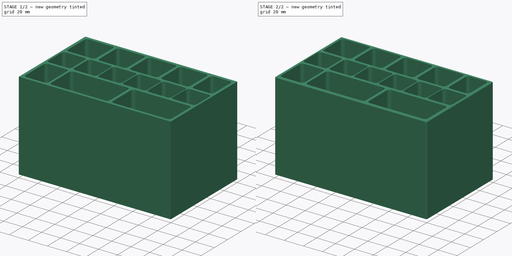
[diagram: build sequence overview — one tinted view per stage of 2, left to right]
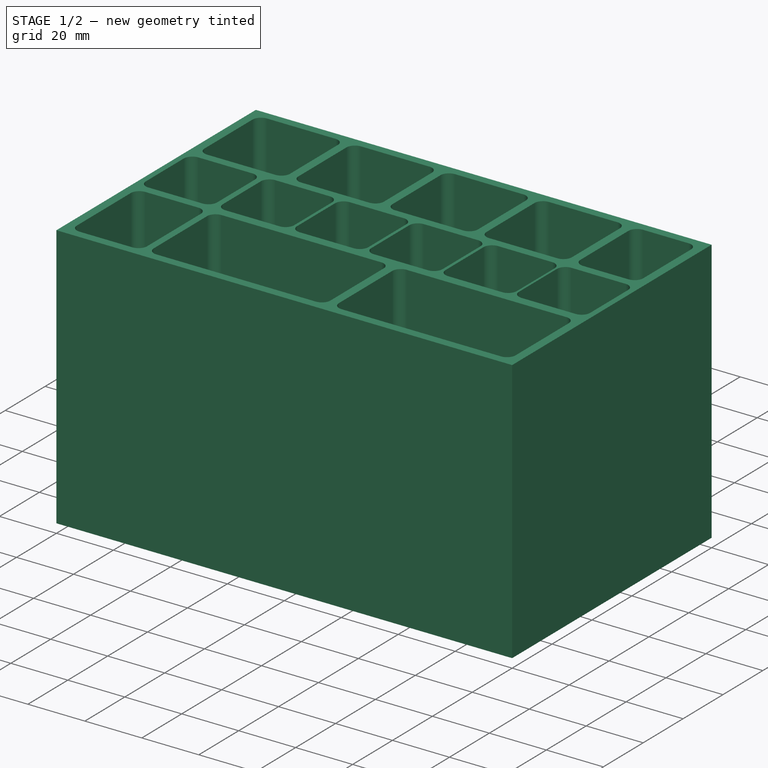
[diagram: stage 1 of 2 — iso view after this stage's code; geometry added in this stage tinted green]
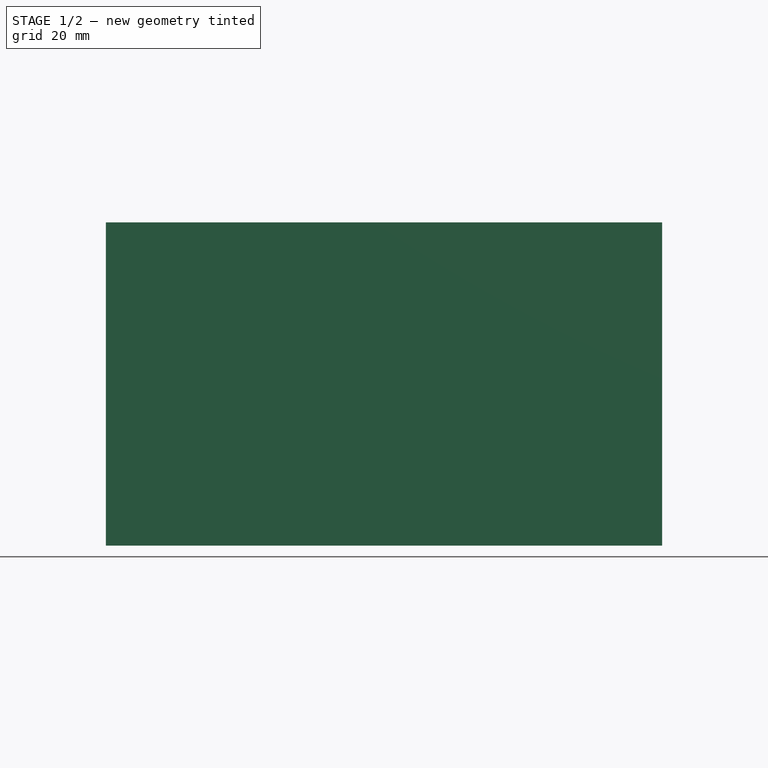
[diagram: stage 1 of 2 — front view after this stage's code; geometry added in this stage tinted green]
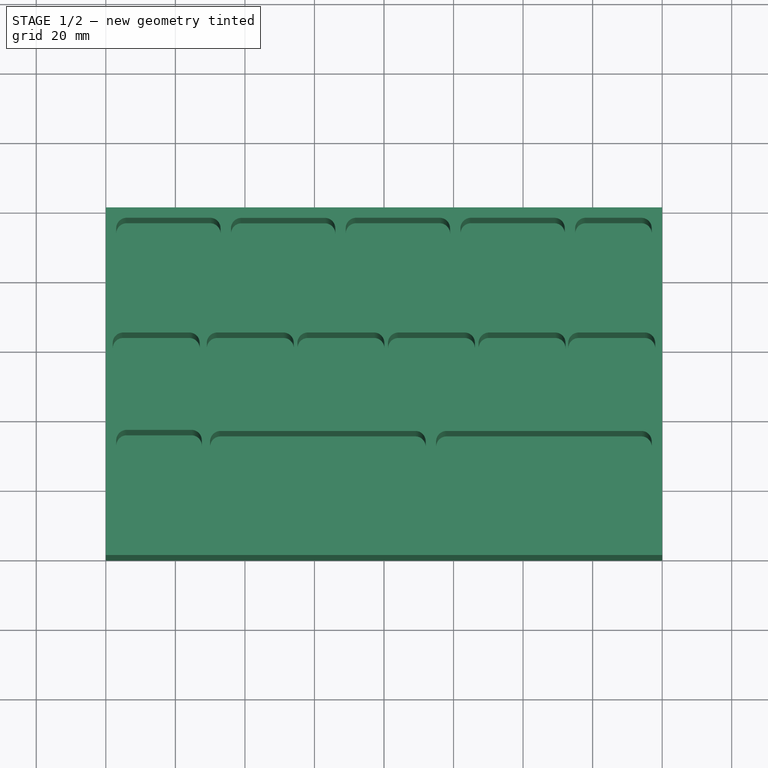
[diagram: stage 1 of 2 — top view after this stage's code; geometry added in this stage tinted green]
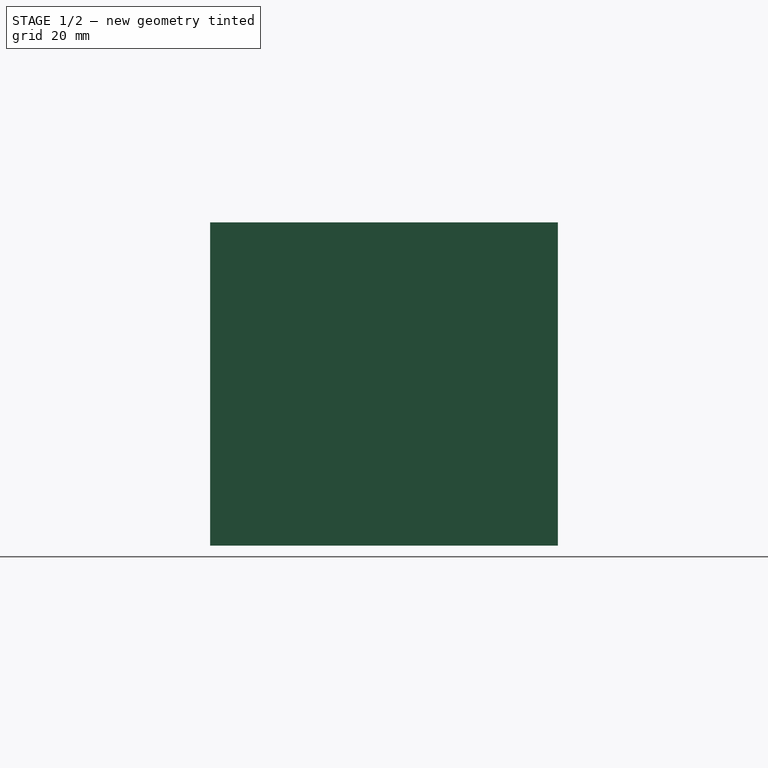
[diagram: stage 1 of 2 — right view after this stage's code; geometry added in this stage tinted green]
FCSTD DOCUMENT  (FreeCAD 1.2R20251230 (Git shallow))
Label: box_usb_lines
License: All rights reserved
LicenseURL: https://en.wikipedia.org/wiki/All_rights_reserved
objects: Sketcher::SketchObject×2, PartDesign::Pad×2, App::Point×1, PartDesign::Fillet×1, PartDesign::Body×1
note: 14 computed .brp shape members not serialized (recipe doc carries the construction recipe); baked Part::Feature solids carry a one-line shape summary decoded from their .brp

FEATURE [App::Point] Origin001
  Role = Origin
FEATURE [Sketcher::SketchObject] Sketch
  ArcFitTolerance = 1e-06
  AttachmentSupport = -> [Origin]
  ExternalTypes = [0]
  FullyConstrained = false
  MakeInternals = false
  MapMode = 5
  sketch-geometry (144):
    g0: LineSegment StartX=0 StartY=0 StartZ=0 EndX=0 EndY=100 EndZ=0
    g1: LineSegment StartX=0 StartY=100 StartZ=0 EndX=-160 EndY=100 EndZ=0
    g2: LineSegment StartX=-160 StartY=100 StartZ=0 EndX=-160 EndY=0 EndZ=0
    g3: LineSegment StartX=-160 StartY=0 StartZ=0 EndX=0 EndY=0 EndZ=0
    g4: LineSegment StartX=-157 StartY=94 StartZ=0 EndX=-157 EndY=70 EndZ=0
    g5: LineSegment StartX=-154 StartY=67 StartZ=0 EndX=-130 EndY=67 EndZ=0
    g6: LineSegment StartX=-127 StartY=70 StartZ=0 EndX=-127 EndY=94 EndZ=0
    g7: LineSegment StartX=-130 StartY=97 StartZ=0 EndX=-154 EndY=97 EndZ=0
    g8: ArcOfCircle CenterX=-154 CenterY=94 CenterZ=0 NormalX=0 NormalY=0 NormalZ=1 AngleXU=0 Radius=3 StartAngle=1.5708 EndAngle=3.14159
    g9: ArcOfCircle CenterX=-154 CenterY=70 CenterZ=0 NormalX=0 NormalY=0 NormalZ=1 AngleXU=0 Radius=3 StartAngle=3.14159 EndAngle=4.71239
    g10: ArcOfCircle CenterX=-130 CenterY=70 CenterZ=0 NormalX=0 NormalY=0 NormalZ=1 AngleXU=0 Radius=3 StartAngle=4.71239 EndAngle=6.28319
    g11: ArcOfCircle CenterX=-130 CenterY=94 CenterZ=0 NormalX=0 NormalY=0 NormalZ=1 AngleXU=0 Radius=3 StartAngle=1.4e-15 EndAngle=1.5708
    g12: GeomPoint [constr] X=-157 Y=97 Z=0
    g13: GeomPoint [constr] X=-127 Y=67 Z=0
    g14: LineSegment StartX=-124 StartY=93.9752 StartZ=0 EndX=-124 EndY=69.9752 EndZ=0
    g15: LineSegment StartX=-121 StartY=66.9752 StartZ=0 EndX=-97 EndY=66.9752 EndZ=0
    g16: LineSegment StartX=-94 StartY=69.9752 StartZ=0 EndX=-94 EndY=93.9752 EndZ=0
    g17: LineSegment StartX=-97 StartY=96.9752 StartZ=0 EndX=-121 EndY=96.9752 EndZ=0
    g18: ArcOfCircle CenterX=-121 CenterY=93.9752 CenterZ=0 NormalX=0 NormalY=0 NormalZ=1 AngleXU=0 Radius=3 StartAngle=1.5708 EndAngle=3.14159
    g19: ArcOfCircle CenterX=-121 CenterY=69.9752 CenterZ=0 NormalX=0 NormalY=0 NormalZ=1 AngleXU=0 Radius=3 StartAngle=3.14159 EndAngle=4.71239
    g20: ArcOfCircle CenterX=-97 CenterY=69.9752 CenterZ=0 NormalX=0 NormalY=0 NormalZ=1 AngleXU=0 Radius=3 StartAngle=4.71239 EndAngle=6.28319
    g21: ArcOfCircle CenterX=-97 CenterY=93.9752 CenterZ=0 NormalX=0 NormalY=0 NormalZ=1 AngleXU=0 Radius=3 StartAngle=-9e-16 EndAngle=1.5708
    g22: GeomPoint [constr] X=-124 Y=96.9752 Z=0
    g23: GeomPoint [constr] X=-94 Y=66.9752 Z=0
    g24: LineSegment StartX=-91 StartY=94 StartZ=0 EndX=-91 EndY=70 EndZ=0
    g25: LineSegment StartX=-88 StartY=67 StartZ=0 EndX=-64 EndY=67 EndZ=0
    g26: LineSegment StartX=-61 StartY=70 StartZ=0 EndX=-61 EndY=94 EndZ=0
    g27: LineSegment StartX=-64 StartY=97 StartZ=0 EndX=-88 EndY=97 EndZ=0
    g28: ArcOfCircle CenterX=-88 CenterY=94 CenterZ=0 NormalX=0 NormalY=0 NormalZ=1 AngleXU=0 Radius=3 StartAngle=1.5708 EndAngle=3.14159
    g29: ArcOfCircle CenterX=-88 CenterY=70 CenterZ=0 NormalX=0 NormalY=0 NormalZ=1 AngleXU=0 Radius=3 StartAngle=3.14159 EndAngle=4.71239
    g30: ArcOfCircle CenterX=-64 CenterY=70 CenterZ=0 NormalX=0 NormalY=0 NormalZ=1 AngleXU=0 Radius=3 StartAngle=4.71239 EndAngle=6.28319
    g31: ArcOfCircle CenterX=-64 CenterY=94 CenterZ=0 NormalX=0 NormalY=0 NormalZ=1 AngleXU=0 Radius=3 StartAngle=-1.8e-15 EndAngle=1.5708
    g32: GeomPoint [constr] X=-91 Y=97 Z=0
    g33: GeomPoint [constr] X=-61 Y=67 Z=0
    g34: LineSegment StartX=-58 StartY=94 StartZ=0 EndX=-58 EndY=70 EndZ=0
    g35: LineSegment StartX=-55 StartY=67 StartZ=0 EndX=-31 EndY=67 EndZ=0
    g36: LineSegment StartX=-28 StartY=70 StartZ=0 EndX=-28 EndY=94 EndZ=0
    g37: LineSegment StartX=-31 StartY=97 StartZ=0 EndX=-55 EndY=97 EndZ=0
    g38: ArcOfCircle CenterX=-55 CenterY=94 CenterZ=0 NormalX=0 NormalY=0 NormalZ=1 AngleXU=0 Radius=3 StartAngle=1.5708 EndAngle=3.14159
    g39: ArcOfCircle CenterX=-55 CenterY=70 CenterZ=0 NormalX=0 NormalY=0 NormalZ=1 AngleXU=0 Radius=3 StartAngle=3.14159 EndAngle=4.71239
    g40: ArcOfCircle CenterX=-31 CenterY=70 CenterZ=0 NormalX=0 NormalY=0 NormalZ=1 AngleXU=0 Radius=3 StartAngle=4.71239 EndAngle=6.28319
    g41: ArcOfCircle CenterX=-31 CenterY=94 CenterZ=0 NormalX=0 NormalY=0 NormalZ=1 AngleXU=0 Radius=3 StartAngle=1e-15 EndAngle=1.5708
    g42: GeomPoint [constr] X=-58 Y=97 Z=0
    g43: GeomPoint [constr] X=-28 Y=67 Z=0
    g44: LineSegment StartX=-25 StartY=94 StartZ=0 EndX=-25 EndY=70 EndZ=0
    g45: LineSegment StartX=-22 StartY=67 StartZ=0 EndX=-6 EndY=67 EndZ=0
    g46: LineSegment StartX=-3 StartY=70 StartZ=0 EndX=-3 EndY=94 EndZ=0
    g47: LineSegment StartX=-6 StartY=97 StartZ=0 EndX=-22 EndY=97 EndZ=0
    g48: ArcOfCircle CenterX=-22 CenterY=94 CenterZ=0 NormalX=0 NormalY=0 NormalZ=1 AngleXU=0 Radius=3 StartAngle=1.5708 EndAngle=3.14159
    g49: ArcOfCircle CenterX=-22 CenterY=70 CenterZ=0 NormalX=0 NormalY=0 NormalZ=1 AngleXU=0 Radius=3 StartAngle=3.14159 EndAngle=4.71239
    g50: ArcOfCircle CenterX=-6 CenterY=70 CenterZ=0 NormalX=0 NormalY=0 NormalZ=1 AngleXU=0 Radius=3 StartAngle=4.71239 EndAngle=6.28319
    g51: ArcOfCircle CenterX=-6 CenterY=94 CenterZ=0 NormalX=0 NormalY=0 NormalZ=1 AngleXU=0 Radius=3 StartAngle=-9e-16 EndAngle=1.5708
    g52: GeomPoint [constr] X=-25 Y=97 Z=0
    g53: GeomPoint [constr] X=-3 Y=67 Z=0
    g54: LineSegment StartX=-133 StartY=42 StartZ=0 EndX=-133 EndY=61 EndZ=0
    g55: LineSegment StartX=-136 StartY=64 StartZ=0 EndX=-155 EndY=64 EndZ=0
    g56: LineSegment StartX=-158 StartY=61 StartZ=0 EndX=-158 EndY=42 EndZ=0
    g57: LineSegment StartX=-155 StartY=39 StartZ=0 EndX=-136 EndY=39 EndZ=0
    g58: ArcOfCircle CenterX=-136 CenterY=42 CenterZ=0 NormalX=0 NormalY=0 NormalZ=1 AngleXU=0 Radius=3 StartAngle=4.71239 EndAngle=6.28319
    g59: ArcOfCircle CenterX=-136 CenterY=61 CenterZ=0 NormalX=0 NormalY=0 NormalZ=1 AngleXU=0 Radius=3 StartAngle=-9e-16 EndAngle=1.5708
    g60: ArcOfCircle CenterX=-155 CenterY=61 CenterZ=0 NormalX=0 NormalY=0 NormalZ=1 AngleXU=0 Radius=3 StartAngle=1.5708 EndAngle=3.14159
    g61: ArcOfCircle CenterX=-155 CenterY=42 CenterZ=0 NormalX=0 NormalY=0 NormalZ=1 AngleXU=0 Radius=3 StartAngle=3.14159 EndAngle=4.71239
    g62: GeomPoint [constr] X=-133 Y=39 Z=0
    g63: GeomPoint [constr] X=-158 Y=64 Z=0
    g64: LineSegment StartX=-105.946 StartY=42 StartZ=0 EndX=-105.946 EndY=61 EndZ=0
    g65: LineSegment StartX=-108.946 StartY=64 StartZ=0 EndX=-127.946 EndY=64 EndZ=0
    g66: LineSegment StartX=-130.946 StartY=61 StartZ=0 EndX=-130.946 EndY=42 EndZ=0
    g67: LineSegment StartX=-127.946 StartY=39 StartZ=0 EndX=-108.946 EndY=39 EndZ=0
    g68: ArcOfCircle CenterX=-108.946 CenterY=42 CenterZ=0 NormalX=0 NormalY=0 NormalZ=1 AngleXU=0 Radius=3 StartAngle=4.71239 EndAngle=6.28319
    g69: ArcOfCircle CenterX=-108.946 CenterY=61 CenterZ=0 NormalX=0 NormalY=0 NormalZ=1 AngleXU=0 Radius=3 StartAngle=0 EndAngle=1.5708
    g70: ArcOfCircle CenterX=-127.946 CenterY=61 CenterZ=0 NormalX=0 NormalY=0 NormalZ=1 AngleXU=0 Radius=3 StartAngle=1.5708 EndAngle=3.14159
    g71: ArcOfCircle CenterX=-127.946 CenterY=42 CenterZ=0 NormalX=0 NormalY=0 NormalZ=1 AngleXU=0 Radius=3 StartAngle=3.14159 EndAngle=4.71239
    g72: GeomPoint [constr] X=-105.946 Y=39 Z=0
    g73: GeomPoint [constr] X=-130.946 Y=64 Z=0
    g74: LineSegment StartX=-79.8914 StartY=42 StartZ=0 EndX=-79.8914 EndY=61 EndZ=0
    g75: LineSegment StartX=-82.8914 StartY=64 StartZ=0 EndX=-101.891 EndY=64 EndZ=0
    g76: LineSegment StartX=-104.891 StartY=61 StartZ=0 EndX=-104.891 EndY=42 EndZ=0
    g77: LineSegment StartX=-101.891 StartY=39 StartZ=0 EndX=-82.8914 EndY=39 EndZ=0
    g78: ArcOfCircle CenterX=-82.8914 CenterY=42 CenterZ=0 NormalX=0 NormalY=0 NormalZ=1 AngleXU=0 Radius=3 StartAngle=4.71239 EndAngle=6.28319
    g79: ArcOfCircle CenterX=-82.8914 CenterY=61 CenterZ=0 NormalX=0 NormalY=0 NormalZ=1 AngleXU=0 Radius=3 StartAngle=0 EndAngle=1.5708
    g80: ArcOfCircle CenterX=-101.891 CenterY=61 CenterZ=0 NormalX=0 NormalY=0 NormalZ=1 AngleXU=0 Radius=3 StartAngle=1.5708 EndAngle=3.14159
    g81: ArcOfCircle CenterX=-101.891 CenterY=42 CenterZ=0 NormalX=0 NormalY=0 NormalZ=1 AngleXU=0 Radius=3 StartAngle=3.14159 EndAngle=4.71239
    g82: GeomPoint [constr] X=-79.8914 Y=39 Z=0
    g83: GeomPoint [constr] X=-104.891 Y=64 Z=0
    g84: LineSegment StartX=-53.8372 StartY=42 StartZ=0 EndX=-53.8372 EndY=61 EndZ=0
    g85: LineSegment StartX=-56.8372 StartY=64 StartZ=0 EndX=-75.8372 EndY=64 EndZ=0
    g86: LineSegment StartX=-78.8372 StartY=61 StartZ=0 EndX=-78.8372 EndY=42 EndZ=0
    g87: LineSegment StartX=-75.8372 StartY=39 StartZ=0 EndX=-56.8372 EndY=39 EndZ=0
    g88: ArcOfCircle CenterX=-56.8372 CenterY=42 CenterZ=0 NormalX=0 NormalY=0 NormalZ=1 AngleXU=0 Radius=3 StartAngle=4.71239 EndAngle=6.28319
    g89: ArcOfCircle CenterX=-56.8372 CenterY=61 CenterZ=0 NormalX=0 NormalY=0 NormalZ=1 AngleXU=0 Radius=3 StartAngle=0 EndAngle=1.5708
    g90: ArcOfCircle CenterX=-75.8372 CenterY=61 CenterZ=0 NormalX=0 NormalY=0 NormalZ=1 AngleXU=0 Radius=3 StartAngle=1.5708 EndAngle=3.14159
    g91: ArcOfCircle CenterX=-75.8372 CenterY=42 CenterZ=0 NormalX=0 NormalY=0 NormalZ=1 AngleXU=0 Radius=3 StartAngle=3.14159 EndAngle=4.71239
    g92: GeomPoint [constr] X=-53.8372 Y=39 Z=0
    g93: GeomPoint [constr] X=-78.8372 Y=64 Z=0
    g94: LineSegment StartX=-27.7829 StartY=42 StartZ=0 EndX=-27.7829 EndY=61 EndZ=0
    g95: LineSegment StartX=-30.7829 StartY=64 StartZ=0 EndX=-49.7829 EndY=64 EndZ=0
    g96: LineSegment StartX=-52.7829 StartY=61 StartZ=0 EndX=-52.7829 EndY=42 EndZ=0
    g97: LineSegment StartX=-49.7829 StartY=39 StartZ=0 EndX=-30.7829 EndY=39 EndZ=0
    g98: ArcOfCircle CenterX=-30.7829 CenterY=42 CenterZ=0 NormalX=0 NormalY=0 NormalZ=1 AngleXU=0 Radius=3 StartAngle=4.71239 EndAngle=6.28319
    g99: ArcOfCircle CenterX=-30.7829 CenterY=61 CenterZ=0 NormalX=0 NormalY=0 NormalZ=1 AngleXU=0 Radius=3 StartAngle=0 EndAngle=1.5708
    g100: ArcOfCircle CenterX=-49.7829 CenterY=61 CenterZ=0 NormalX=0 NormalY=0 NormalZ=1 AngleXU=0 Radius=3 StartAngle=1.5708 EndAngle=3.14159
    g101: ArcOfCircle CenterX=-49.7829 CenterY=42 CenterZ=0 NormalX=0 NormalY=0 NormalZ=1 AngleXU=0 Radius=3 StartAngle=3.14159 EndAngle=4.71239
    g102: GeomPoint [constr] X=-27.7829 Y=39 Z=0
    g103: GeomPoint [constr] X=-52.7829 Y=64 Z=0
    g104: LineSegment StartX=-2 StartY=42 StartZ=0 EndX=-2 EndY=61 EndZ=0
    g105: LineSegment StartX=-5 StartY=64 StartZ=0 EndX=-24 EndY=64 EndZ=0
    g106: LineSegment StartX=-27 StartY=61 StartZ=0 EndX=-27 EndY=42 EndZ=0
    g107: LineSegment StartX=-24 StartY=39 StartZ=0 EndX=-5 EndY=39 EndZ=0
    g108: ArcOfCircle CenterX=-5 CenterY=42 CenterZ=0 NormalX=0 NormalY=0 NormalZ=1 AngleXU=0 Radius=3 StartAngle=4.71239 EndAngle=6.28319
    g109: ArcOfCircle CenterX=-5 CenterY=61 CenterZ=0 NormalX=0 NormalY=0 NormalZ=1 AngleXU=0 Radius=3 StartAngle=2e-16 EndAngle=1.5708
    g110: ArcOfCircle CenterX=-24 CenterY=61 CenterZ=0 NormalX=0 NormalY=0 NormalZ=1 AngleXU=0 Radius=3 StartAngle=1.5708 EndAngle=3.14159
    g111: ArcOfCircle CenterX=-24 CenterY=42 CenterZ=0 NormalX=0 NormalY=0 NormalZ=1 AngleXU=0 Radius=3 StartAngle=3.14159 EndAngle=4.71239
    g112: GeomPoint [constr] X=-2 Y=39 Z=0
    g113: GeomPoint [constr] X=-27 Y=64 Z=0
    g114: LineSegment StartX=-157 StartY=33 StartZ=0 EndX=-157 EndY=6 EndZ=0
    g115: LineSegment StartX=-154 StartY=3 StartZ=0 EndX=-135.39 EndY=3 EndZ=0
    g116: LineSegment StartX=-132.39 StartY=6 StartZ=0 EndX=-132.39 EndY=33 EndZ=0
    g117: LineSegment StartX=-135.39 StartY=36 StartZ=0 EndX=-154 EndY=36 EndZ=0
    g118: ArcOfCircle CenterX=-154 CenterY=33 CenterZ=0 NormalX=0 NormalY=0 NormalZ=1 AngleXU=0 Radius=3 StartAngle=1.5708 EndAngle=3.14159
    g119: ArcOfCircle CenterX=-154 CenterY=6 CenterZ=0 NormalX=0 NormalY=0 NormalZ=1 AngleXU=0 Radius=3 StartAngle=3.14159 EndAngle=4.71239
    g120: ArcOfCircle CenterX=-135.39 CenterY=6 CenterZ=0 NormalX=0 NormalY=0 NormalZ=1 AngleXU=0 Radius=3 StartAngle=4.71239 EndAngle=6.28319
    g121: ArcOfCircle CenterX=-135.39 CenterY=33 CenterZ=0 NormalX=0 NormalY=0 NormalZ=1 AngleXU=0 Radius=3 StartAngle=5e-16 EndAngle=1.5708
    g122: GeomPoint [constr] X=-157 Y=36 Z=0
    g123: GeomPoint [constr] X=-132.39 Y=3 Z=0
    g124: LineSegment StartX=-130 StartY=32.6864 StartZ=0 EndX=-130 EndY=6.01384 EndZ=0
    g125: LineSegment StartX=-127 StartY=3.01384 StartZ=0 EndX=-71 EndY=3.01384 EndZ=0
    g126: LineSegment StartX=-68 StartY=6.01384 StartZ=0 EndX=-68 EndY=32.6864 EndZ=0
    g127: LineSegment StartX=-71 StartY=35.6864 StartZ=0 EndX=-127 EndY=35.6864 EndZ=0
    g128: ArcOfCircle CenterX=-127 CenterY=32.6864 CenterZ=0 NormalX=0 NormalY=0 NormalZ=1 AngleXU=0 Radius=3 StartAngle=1.5708 EndAngle=3.14159
    g129: ArcOfCircle CenterX=-127 CenterY=6.01384 CenterZ=0 NormalX=0 NormalY=0 NormalZ=1 AngleXU=0 Radius=3 StartAngle=3.14159 EndAngle=4.71239
    g130: ArcOfCircle CenterX=-71 CenterY=6.01384 CenterZ=0 NormalX=0 NormalY=0 NormalZ=1 AngleXU=0 Radius=3 StartAngle=4.71239 EndAngle=6.28319
    g131: ArcOfCircle CenterX=-71 CenterY=32.6864 CenterZ=0 NormalX=0 NormalY=0 NormalZ=1 AngleXU=0 Radius=3 StartAngle=-9e-16 EndAngle=1.5708
    g132: GeomPoint [constr] X=-130 Y=35.6864 Z=0
    g133: GeomPoint [constr] X=-68 Y=3.01384 Z=0
    g134: LineSegment StartX=-65 StartY=32.6864 StartZ=0 EndX=-65 EndY=6.01969 EndZ=0
    g135: LineSegment StartX=-62 StartY=3.01969 StartZ=0 EndX=-6 EndY=3.01969 EndZ=0
    g136: LineSegment StartX=-3 StartY=6.01969 StartZ=0 EndX=-3 EndY=32.6864 EndZ=0
    g137: LineSegment StartX=-6 StartY=35.6864 StartZ=0 EndX=-62 EndY=35.6864 EndZ=0
    g138: ArcOfCircle CenterX=-62 CenterY=32.6864 CenterZ=0 NormalX=0 NormalY=0 NormalZ=1 AngleXU=0 Radius=3 StartAngle=1.5708 EndAngle=3.14159
    g139: ArcOfCircle CenterX=-62 CenterY=6.01969 CenterZ=0 NormalX=0 NormalY=0 NormalZ=1 AngleXU=0 Radius=3 StartAngle=3.14159 EndAngle=4.71239
    g140: ArcOfCircle CenterX=-6 CenterY=6.01969 CenterZ=0 NormalX=0 NormalY=0 NormalZ=1 AngleXU=0 Radius=3 StartAngle=4.71239 EndAngle=6.28319
    g141: ArcOfCircle CenterX=-6 CenterY=32.6864 CenterZ=0 NormalX=0 NormalY=0 NormalZ=1 AngleXU=0 Radius=3 StartAngle=0 EndAngle=1.5708
    g142: GeomPoint [constr] X=-65 Y=35.6864 Z=0
    g143: GeomPoint [constr] X=-3 Y=3.01969 Z=0
  constraints (332):
    c: Coincident(g0,g1)
    c: Coincident(g1,g2)
    c: Coincident(g2,g3)
    c: Coincident(g3,g0)
    c: Vertical(g0)
    c: Vertical(g2)
    c: Horizontal(g1)
    c: Horizontal(g3)
    c: Coincident(g0,g-1)
    c: DistanceX(g1,g1) = 160
    c: DistanceY(g2,g2) = 100
    c: Tangent(g4,g8) = -1.5708
    c: Tangent(g4,g9) = -1.5708
    c: Tangent(g5,g9) = -1.5708
    c: Tangent(g5,g10) = -1.5708
    c: Tangent(g6,g10) = -1.5708
    c: Tangent(g6,g11) = -1.5708
    c: Tangent(g7,g11) = -1.5708
    c: Tangent(g7,g8) = -1.5708
    c: Vertical(g4)
    c: Vertical(g6)
    c: Horizontal(g5)
    c: Horizontal(g7)
    c: Equal(g8,g9)
    c: Equal(g9,g10)
    c: Equal(g10,g11)
    c: PointOnObject(g12,g4)
    c: PointOnObject(g12,g7)
    c: PointOnObject(g13,g5)
    c: PointOnObject(g13,g6)
    c: Radius(g8) = 3
    c: Distance(g6,g4) = 30
    c: Distance(g4,g2) = 3
    c: Distance(g1,g7) = 3
    c: Tangent(g14,g18) = -1.5708
    c: Tangent(g24,g28) = -1.5708
    c: Tangent(g34,g38) = -1.5708
    c: Tangent(g14,g19) = -1.5708
    c: Tangent(g24,g29) = -1.5708
    c: Tangent(g34,g39) = -1.5708
    c: Tangent(g15,g19) = -1.5708
    c: Tangent(g25,g29) = -1.5708
    c: Tangent(g35,g39) = -1.5708
    c: Tangent(g15,g20) = -1.5708
    c: Tangent(g25,g30) = -1.5708
    c: Tangent(g35,g40) = -1.5708
    c: Tangent(g16,g20) = -1.5708
    c: Tangent(g26,g30) = -1.5708
    c: Tangent(g36,g40) = -1.5708
    c: Tangent(g16,g21) = -1.5708
    c: Tangent(g26,g31) = -1.5708
    c: Tangent(g36,g41) = -1.5708
    c: Tangent(g17,g21) = -1.5708
    c: Tangent(g27,g31) = -1.5708
    c: Tangent(g37,g41) = -1.5708
    c: Tangent(g17,g18) = -1.5708
    c: Tangent(g27,g28) = -1.5708
    c: Tangent(g37,g38) = -1.5708
    c: Vertical(g14)
    c: Vertical(g24)
    c: Vertical(g34)
    c: Vertical(g16)
    c: Vertical(g26)
    c: Vertical(g36)
    c: Horizontal(g15)
    c: Horizontal(g25)
    c: Horizontal(g35)
    c: Horizontal(g17)
    c: Horizontal(g27)
    c: Horizontal(g37)
    c: Equal(g18,g19)
    c: Equal(g28,g29)
    c: Equal(g38,g39)
    c: Equal(g19,g20)
    c: Equal(g29,g30)
    c: Equal(g39,g40)
    c: Equal(g20,g21)
    c: Equal(g30,g31)
    c: Equal(g40,g41)
    c: PointOnObject(g22,g14)
    c: PointOnObject(g32,g24)
    c: PointOnObject(g42,g34)
    c: PointOnObject(g22,g17)
    c: PointOnObject(g32,g27)
    c: PointOnObject(g42,g37)
    c: PointOnObject(g23,g15)
    c: PointOnObject(g33,g25)
    c: PointOnObject(g43,g35)
    c: PointOnObject(g23,g16)
    c: PointOnObject(g33,g26)
    c: PointOnObject(g43,g36)
    c: Radius(g18) = 3
    c: Radius(g28) = 3
    c: Radius(g38) = 3
    c: Distance(g16,g14) = 30
    c: Distance(g26,g24) = 30
    c: Distance(g36,g34) = 30
    c: Distance(g6,g14) = 3
    c: Distance(g24,g16) = 3
    c: Distance(g34,g26) = 3
    c: Tangent(g44,g48) = -1.5708
    c: Tangent(g44,g49) = -1.5708
    c: Tangent(g45,g49) = -1.5708
    c: Tangent(g45,g50) = -1.5708
    c: Tangent(g46,g50) = -1.5708
    c: Tangent(g46,g51) = -1.5708
    c: Tangent(g47,g51) = -1.5708
    c: Tangent(g47,g48) = -1.5708
    c: Vertical(g44)
    c: Vertical(g46)
    c: Horizontal(g45)
    c: Horizontal(g47)
    c: Equal(g48,g49)
    c: Equal(g49,g50)
    c: Equal(g50,g51)
    c: PointOnObject(g52,g44)
    c: PointOnObject(g52,g47)
    c: PointOnObject(g53,g45)
    c: PointOnObject(g53,g46)
    c: Radius(g51) = 3
    c: Distance(g0,g46) = 3
    c: Distance(g44,g36) = 3
    c: Distance(g1,g47) = 3
    c: Distance(g45,g47) = 30
    c: Distance(g5,g7) = 30
    c: Distance(g15,g17) = 30
    c: Distance(g25,g27) = 30
    c: Distance(g1,g27) = 3
    c: Distance(g35,g37) = 30
    c: Distance(g1,g37) = 3
    c: Tangent(g54,g58) = -1.5708
    c: Tangent(g54,g59) = -1.5708
    c: Tangent(g55,g59) = -1.5708
    c: Tangent(g55,g60) = -1.5708
    c: Tangent(g56,g60) = -1.5708
    c: Tangent(g56,g61) = -1.5708
    c: Tangent(g57,g61) = -1.5708
    c: Tangent(g57,g58) = -1.5708
    c: Vertical(g54)
    c: Vertical(g56)
    c: Horizontal(g55)
    c: Horizontal(g57)
    c: Equal(g58,g59)
    c: Equal(g59,g60)
    c: Equal(g60,g61)
    c: PointOnObject(g62,g54)
    c: PointOnObject(g62,g57)
    c: PointOnObject(g63,g55)
    c: PointOnObject(g63,g56)
    c: Radius(g60) = 3
    c: Distance(g57,g55) = 25
    c: Distance(g54,g56) = 25
    c: Distance(g2,g56) = 2
    c: Distance(g5,g55) = 3
    c: Tangent(g64,g68) = -1.5708
    c: Tangent(g74,g78) = -1.5708
    c: Tangent(g84,g88) = -1.5708
    c: Tangent(g94,g98) = -1.5708
    c: Tangent(g104,g108) = -1.5708
    c: Tangent(g64,g69) = -1.5708
    c: Tangent(g74,g79) = -1.5708
    c: Tangent(g84,g89) = -1.5708
    c: Tangent(g94,g99) = -1.5708
    c: Tangent(g104,g109) = -1.5708
    c: Tangent(g65,g69) = -1.5708
    c: Tangent(g75,g79) = -1.5708
    c: Tangent(g85,g89) = -1.5708
    c: Tangent(g95,g99) = -1.5708
    c: Tangent(g105,g109) = -1.5708
    c: Tangent(g65,g70) = -1.5708
    c: Tangent(g75,g80) = -1.5708
    c: Tangent(g85,g90) = -1.5708
    c: Tangent(g95,g100) = -1.5708
    c: Tangent(g105,g110) = -1.5708
    c: Tangent(g66,g70) = -1.5708
    c: Tangent(g76,g80) = -1.5708
    c: Tangent(g86,g90) = -1.5708
    c: Tangent(g96,g100) = -1.5708
    c: Tangent(g106,g110) = -1.5708
    c: Tangent(g66,g71) = -1.5708
    c: Tangent(g76,g81) = -1.5708
    c: Tangent(g86,g91) = -1.5708
    c: Tangent(g96,g101) = -1.5708
    c: Tangent(g106,g111) = -1.5708
    c: Tangent(g67,g71) = -1.5708
    c: Tangent(g77,g81) = -1.5708
    c: Tangent(g87,g91) = -1.5708
    c: Tangent(g97,g101) = -1.5708
    c: Tangent(g107,g111) = -1.5708
    c: Tangent(g67,g68) = -1.5708
    c: Tangent(g77,g78) = -1.5708
    c: Tangent(g87,g88) = -1.5708
    c: Tangent(g97,g98) = -1.5708
    c: Tangent(g107,g108) = -1.5708
    c: Vertical(g64)
    c: Vertical(g74)
    c: Vertical(g84)
    c: Vertical(g94)
    c: Vertical(g104)
    c: Vertical(g66)
    c: Vertical(g76)
    c: Vertical(g86)
    c: Vertical(g96)
    c: Vertical(g106)
    c: Horizontal(g65)
    c: Horizontal(g75)
    c: Horizontal(g85)
    c: Horizontal(g95)
    c: Horizontal(g105)
    c: Horizontal(g67)
    c: Horizontal(g77)
    c: Horizontal(g87)
    c: Horizontal(g97)
    c: Horizontal(g107)
    c: Equal(g68,g69)
    c: Equal(g78,g79)
    c: Equal(g88,g89)
    c: Equal(g98,g99)
    c: Equal(g108,g109)
    c: Equal(g69,g70)
    c: Equal(g79,g80)
    c: Equal(g89,g90)
    c: Equal(g99,g100)
    c: Equal(g109,g110)
    c: Equal(g70,g71)
    c: Equal(g80,g81)
    c: Equal(g90,g91)
    c: Equal(g100,g101)
    c: Equal(g110,g111)
    c: PointOnObject(g72,g64)
    c: PointOnObject(g82,g74)
    c: PointOnObject(g92,g84)
    c: PointOnObject(g102,g94)
    c: PointOnObject(g112,g104)
    c: PointOnObject(g72,g67)
    c: PointOnObject(g82,g77)
    c: PointOnObject(g92,g87)
    c: PointOnObject(g102,g97)
    c: PointOnObject(g112,g107)
    c: PointOnObject(g73,g65)
    c: PointOnObject(g83,g75)
    c: PointOnObject(g93,g85)
    c: PointOnObject(g103,g95)
    c: PointOnObject(g113,g105)
    c: PointOnObject(g73,g66)
    c: PointOnObject(g83,g76)
    c: PointOnObject(g93,g86)
    c: PointOnObject(g103,g96)
    c: PointOnObject(g113,g106)
    c: Radius(g70) = 3
    c: Radius(g80) = 3
    c: Radius(g90) = 3
    c: Radius(g100) = 3
    c: Radius(g110) = 3
    c: Distance(g67,g65) = 25
    c: Distance(g77,g75) = 25
    c: Distance(g87,g85) = 25
    c: Distance(g97,g95) = 25
    c: Distance(g107,g105) = 25
    c: Distance(g64,g66) = 25
    c: Distance(g74,g76) = 25
    c: Distance(g84,g86) = 25
    c: Distance(g94,g96) = 25
    c: Distance(g104,g106) = 25
    c: Distance(g0,g104) = 2
    c: Tangent(g114,g118) = -1.5708
    c: Tangent(g114,g119) = -1.5708
    c: Tangent(g115,g119) = -1.5708
    c: Tangent(g115,g120) = -1.5708
    c: Tangent(g116,g120) = -1.5708
    c: Tangent(g116,g121) = -1.5708
    c: Tangent(g117,g121) = -1.5708
    c: Tangent(g117,g118) = -1.5708
    c: Vertical(g114)
    c: Vertical(g116)
    c: Horizontal(g115)
    c: Horizontal(g117)
    c: Equal(g118,g119)
    c: Equal(g119,g120)
    c: Equal(g120,g121)
    c: PointOnObject(g122,g114)
    c: PointOnObject(g122,g117)
    c: PointOnObject(g123,g115)
    c: PointOnObject(g123,g116)
    c: Radius(g120) = 3
    c: Distance(g2,g114) = 3
    c: Distance(g57,g117) = 3
    c: Distance(g3,g115) = 3
    c: Tangent(g124,g128) = -1.5708
    c: Tangent(g124,g129) = -1.5708
    c: Tangent(g125,g129) = -1.5708
    c: Tangent(g125,g130) = -1.5708
    c: Tangent(g126,g130) = -1.5708
    c: Tangent(g126,g131) = -1.5708
    c: Tangent(g127,g131) = -1.5708
    c: Tangent(g127,g128) = -1.5708
    c: Vertical(g124)
    c: Vertical(g126)
    c: Horizontal(g125)
    c: Horizontal(g127)
    c: Equal(g128,g129)
    c: Equal(g129,g130)
    c: Equal(g130,g131)
    c: PointOnObject(g132,g124)
    c: PointOnObject(g132,g127)
    c: PointOnObject(g133,g125)
    c: PointOnObject(g133,g126)
    c: Radius(g130) = 3
    c: Distance(g126,g124) = 62
    c: Tangent(g134,g138) = -1.5708
    c: Tangent(g134,g139) = -1.5708
    c: Tangent(g135,g139) = -1.5708
    c: Tangent(g135,g140) = -1.5708
    c: Tangent(g136,g140) = -1.5708
    c: Tangent(g136,g141) = -1.5708
    c: Tangent(g137,g141) = -1.5708
    c: Tangent(g137,g138) = -1.5708
    c: Vertical(g134)
    c: Vertical(g136)
    c: Horizontal(g135)
    c: Horizontal(g137)
    c: Equal(g138,g139)
    c: Equal(g139,g140)
    c: Equal(g140,g141)
    c: PointOnObject(g142,g134)
    c: PointOnObject(g142,g137)
    c: PointOnObject(g143,g135)
    c: PointOnObject(g143,g136)
    c: Radius(g140) = 3
    c: Distance(g136,g134) = 62
    c: Distance(g0,g136) = 3
    c: Distance(g134,g126) = 3
FEATURE [PartDesign::Pad] Pad
  Direction = (0,0,1)
  Length = 90
  Length2 = 10
  Profile = -> Sketch
  ReferenceAxis = -> Sketch [N_Axis]
  Refine = true
  SideType = 0
  Suppressed = false
  Type = 0
  Type2 = 0
FEATURE [Sketcher::SketchObject] Sketch001
  ArcFitTolerance = 1e-06
  AttachmentSupport = -> [Pad]
  ExternalGeometry = -> [Pad]
  ExternalTypes = [0,0,0,0]
  FullyConstrained = true
  MakeInternals = false
  MapMode = 5
  Placement = pos=(0,0,0) rot=(1,0,0;3.14159rad)
FEATURE [PartDesign::Pad] Pad001
  BaseFeature = -> Pad
  Direction = (0,0,-1)
  Length = 3
  Length2 = 10
  Profile = -> Sketch001
  ReferenceAxis = -> Sketch001 [N_Axis]
  Refine = true
  SideType = 0
  Suppressed = false
  Type = 0
  Type2 = 0
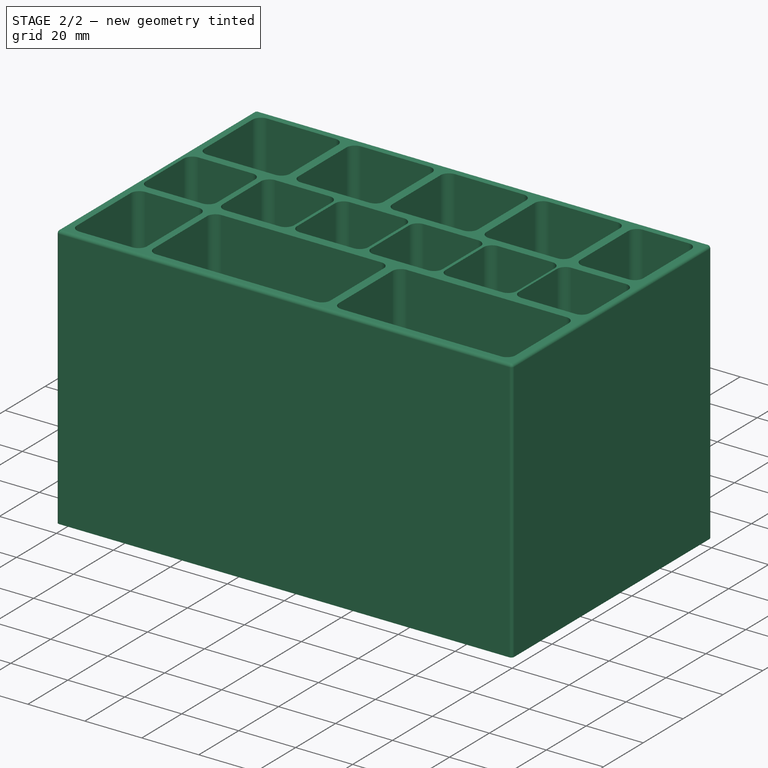
[diagram: stage 2 of 2 — iso view after this stage's code; geometry added in this stage tinted green]
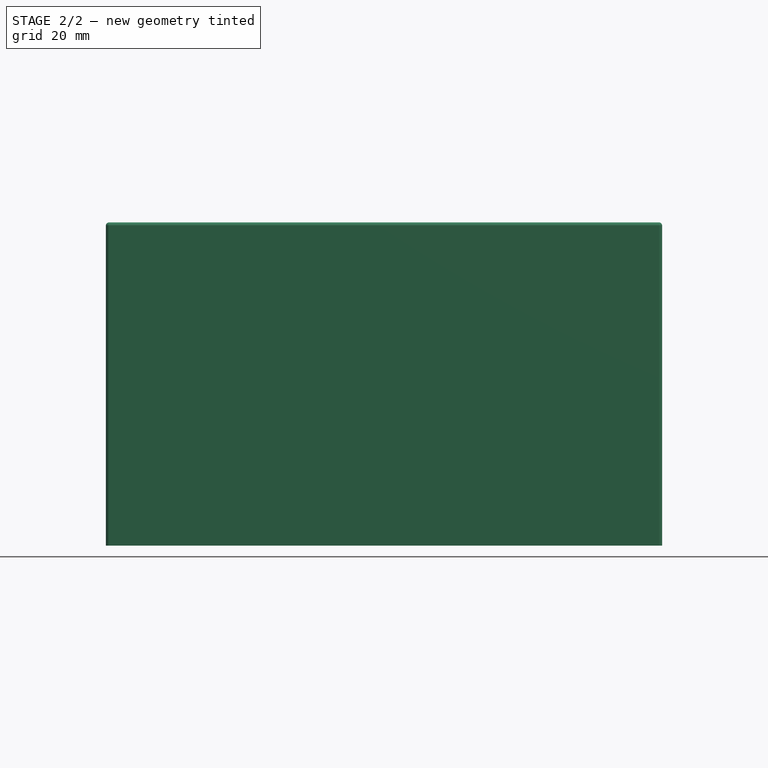
[diagram: stage 2 of 2 — front view after this stage's code; geometry added in this stage tinted green]
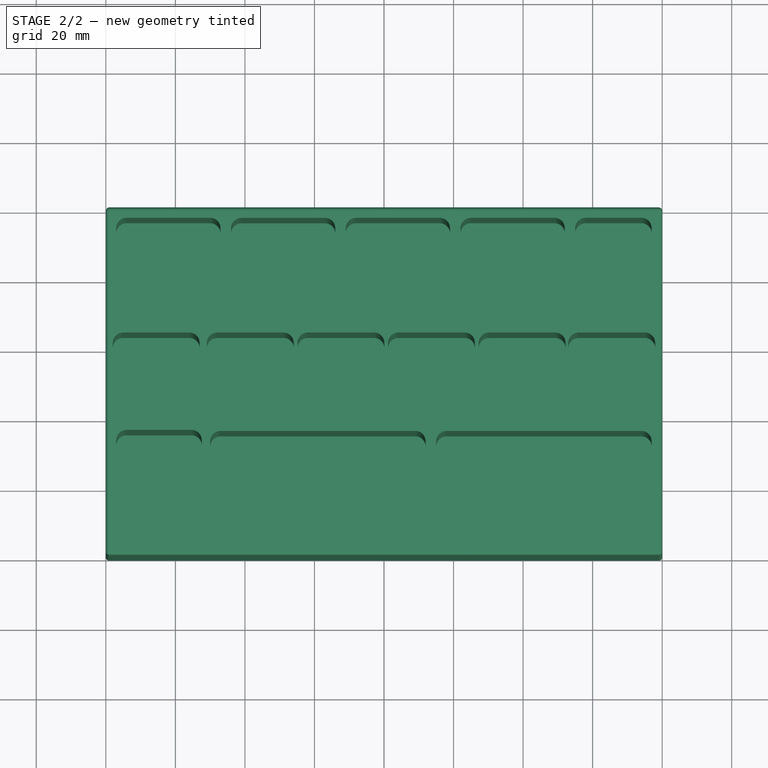
[diagram: stage 2 of 2 — top view after this stage's code; geometry added in this stage tinted green]
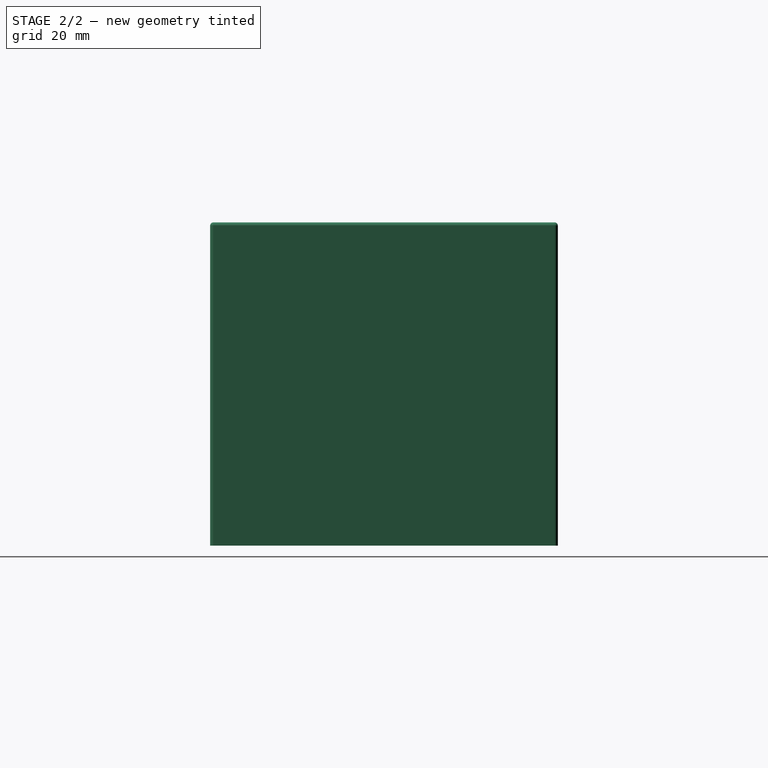
[diagram: stage 2 of 2 — right view after this stage's code; geometry added in this stage tinted green]
FEATURE [PartDesign::Fillet] Fillet
  Base = -> Pad001 [Edge7,Edge8,Edge9,Edge10,Edge5,Edge347,Edge348,Edge6]
  BaseFeature = -> Pad001
  Radius = 1
  Refine = true
  SupportTransform = false
  Suppressed = false
  UseAllEdges = false
FEATURE [PartDesign::Body] Body
  AllowCompound = true
  Group = -> [Sketch,Pad,Sketch001,Pad001,Fillet]
  Origin = -> Origin
  Tip = -> Fillet
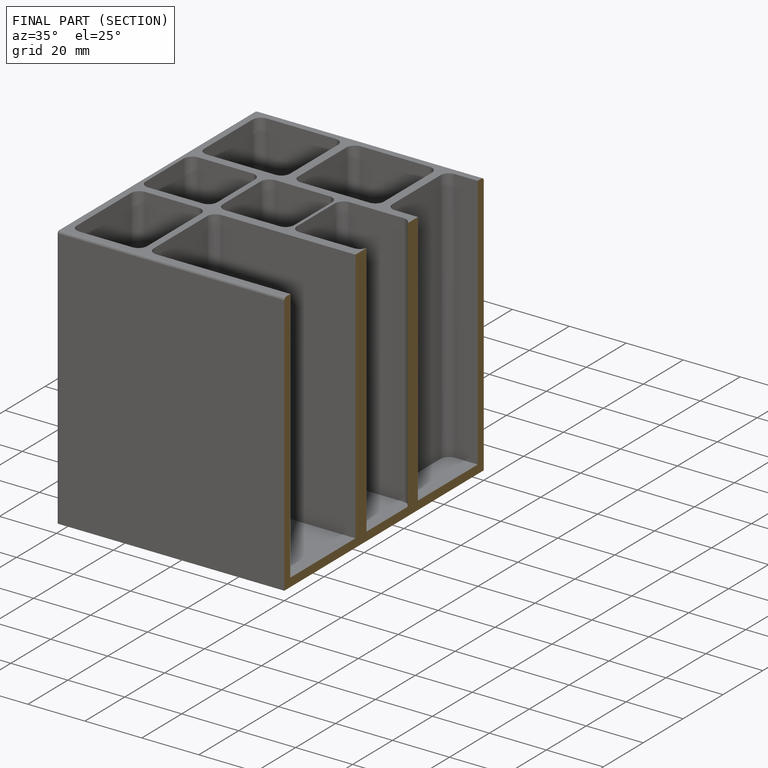
[diagram: finished part — half-section view (interior)]
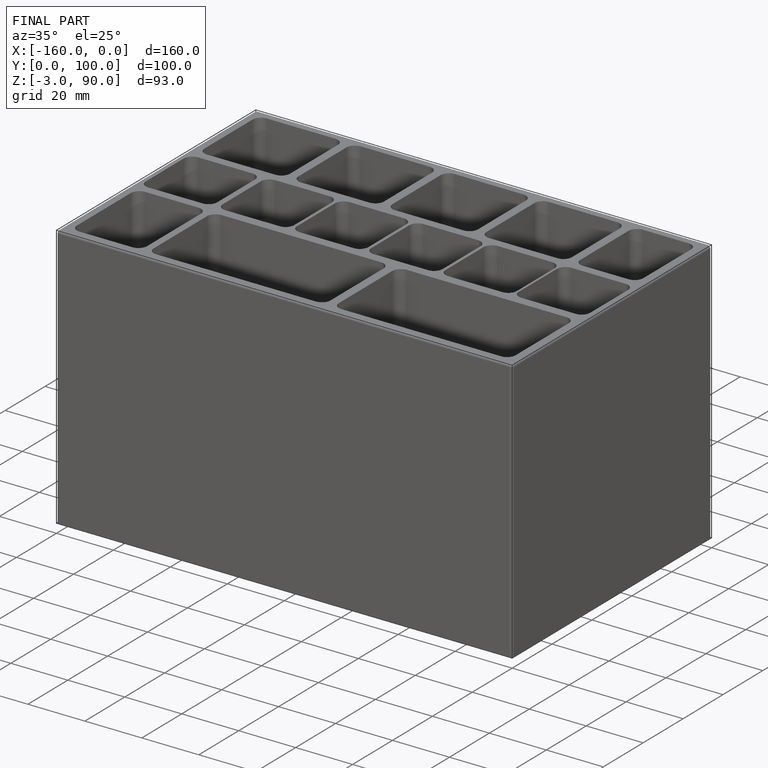
[diagram: finished part — iso view with bounding-box wireframe]
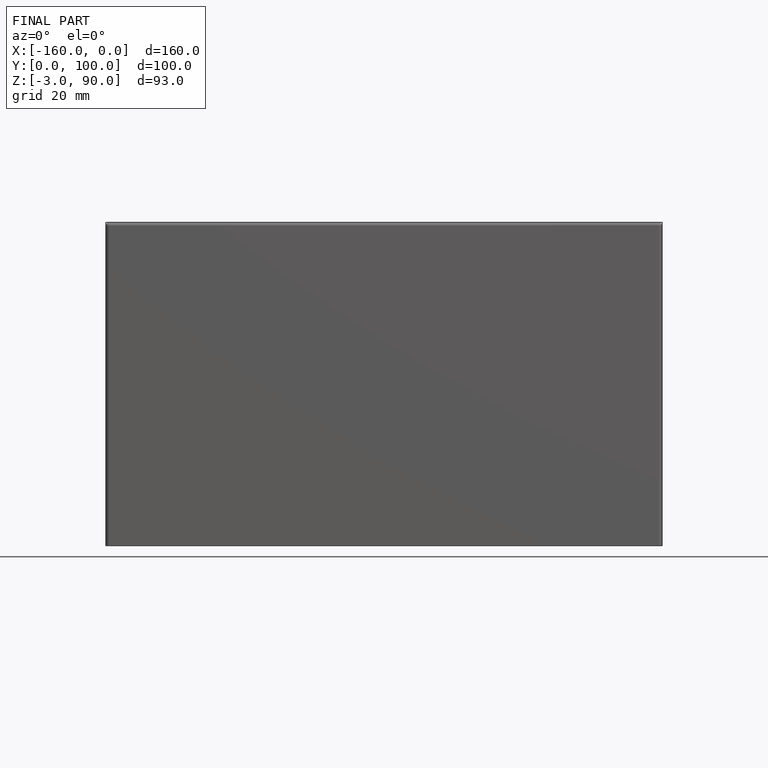
[diagram: finished part — front view with bounding-box wireframe]
